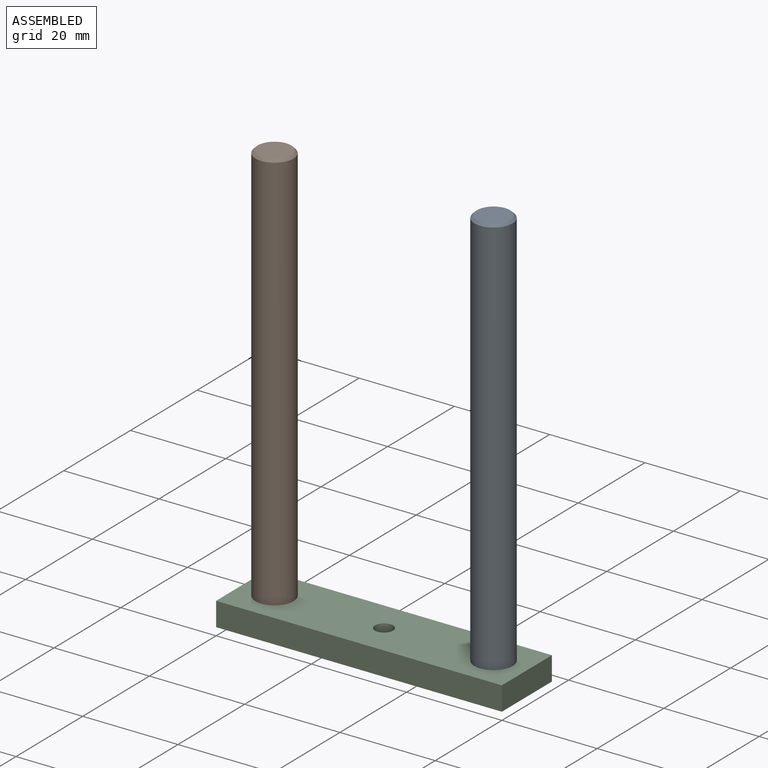
[diagram: assembled view]
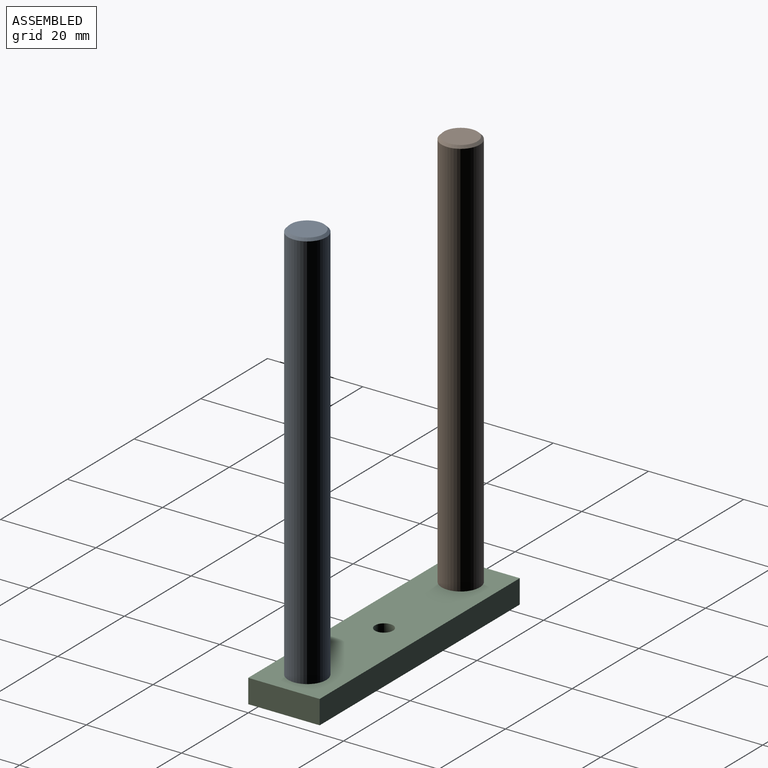
[diagram: assembled view, second angle]
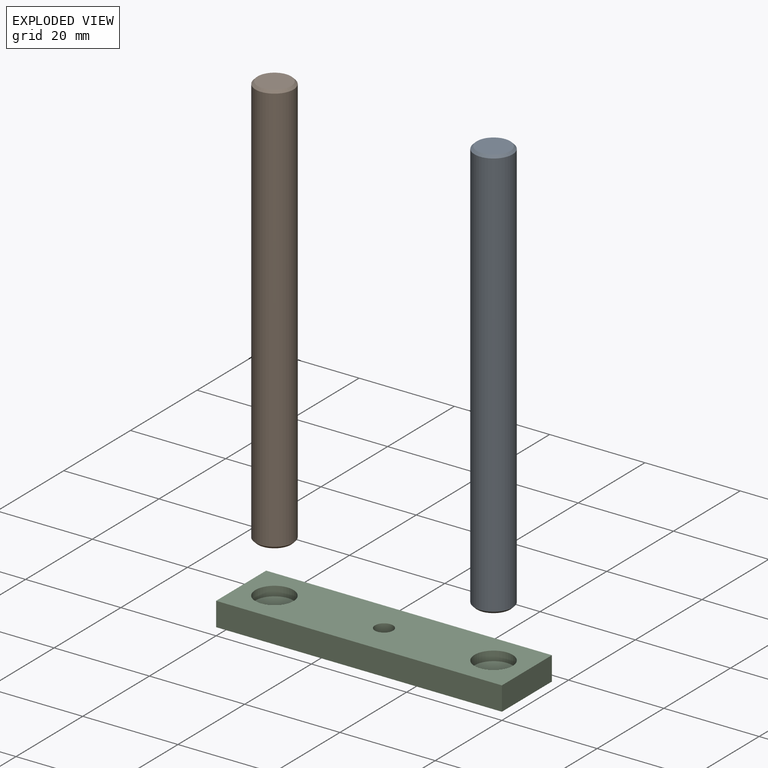
[diagram: exploded view]
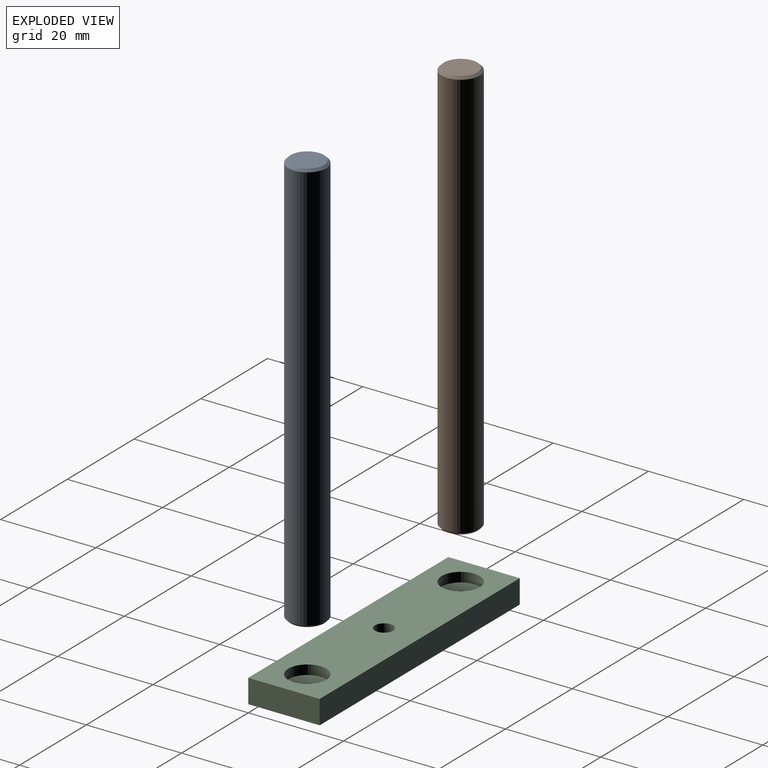
[diagram: exploded view, second angle]
ASSEMBLY  parts=3 mates=2
PART A: 5 faces, bbox 8x8x87 mm
  f0: cylinder r=4mm len=86mm, axis (0,0,-1), area 2161.4mm2, adj f3,f4
  f1: plane 7x7mm, normal (0,0,1), area 38.5mm2, adj f4
  f2: plane 7x7mm, normal (0,0,-1), area 38.5mm2, adj f3
  f3: cone r=4mm half-angle=45deg, axis (0,0,1), area 16.7mm2, adj f0,f2
  f4: cone r=3.5mm half-angle=45deg, axis (0,0,-1), area 16.7mm2, adj f0,f1
PART B: same geometry as A
PART C: 12 faces, bbox 60x15x5 mm
  f0: plane 60x5mm, normal (0,-1,0), area 300mm2, adj f1,f3,f4,f5
  f1: plane 15x5mm, normal (1,0,0), area 75mm2, adj f0,f2,f4,f5
  f2: plane 60x5mm, normal (0,1,0), area 300mm2, adj f1,f3,f4,f5
  f3: plane 15x5mm, normal (-1,0,0), area 75mm2, adj f0,f2,f4,f5
  f4: plane 60x15mm, normal (0,0,1), area 788.1mm2, adj f0,f1,f2,f3,f7,f9,f10
  f5: plane 60x15mm, normal (0,0,-1), area 852.2mm2, adj f0,f1,f2,f3,f11
  f6: cone r=0mm half-angle=59deg, axis (0,0,1), area 58.6mm2, adj f7
  f7: cylinder r=4mm len=8mm, axis (0,0,1), area 50.3mm2, adj f4,f6
  f8: cone r=0mm half-angle=59deg, axis (0,0,1), area 58.6mm2, adj f9
  f9: cylinder r=4mm len=8mm, axis (0,0,1), area 50.3mm2, adj f4,f8
  f10: cylinder r=1.9mm len=3.8mm, axis (0,0,-1), area 32.2mm2, adj f4,f11
  f11: cone r=1.9mm half-angle=41deg, axis (0,0,-1), area 55.5mm2, adj f5,f10
PLACE A t=(-7,7.5,2.5)mm
PLACE B t=(-53,7.5,2.5)mm
PLACE C at identity
MATE fastened B.f0 <-> C.f6  axis (0,0,-1) through (-53,7.5,46)mm
MATE fastened A.f0 <-> C.f8  axis (0,0,-1) through (-7,7.5,46)mm
